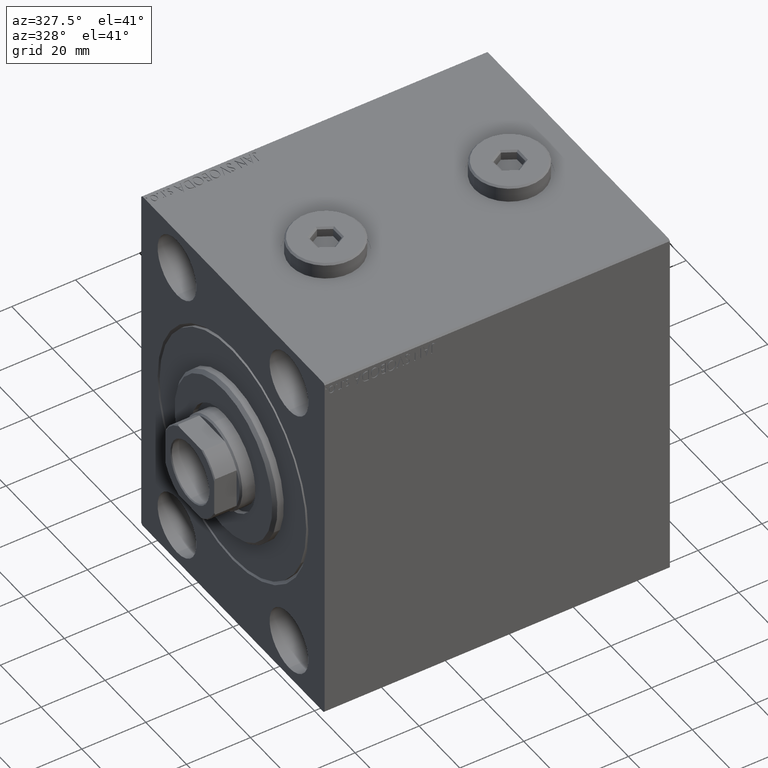
[diagram: clean part render]
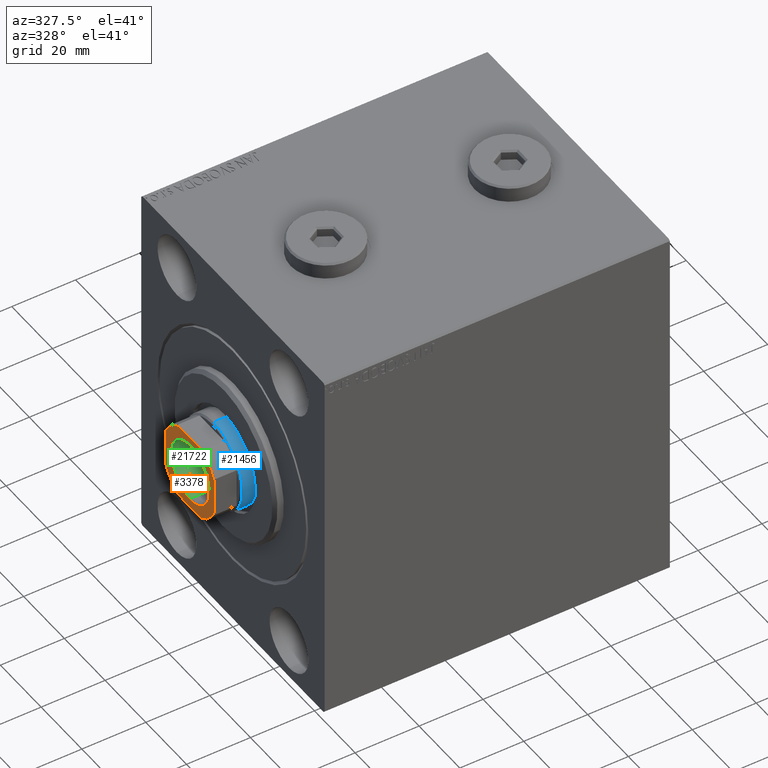
[diagram: same view with three faces highlighted in distinct colors, each labeled with its STEP entity id]
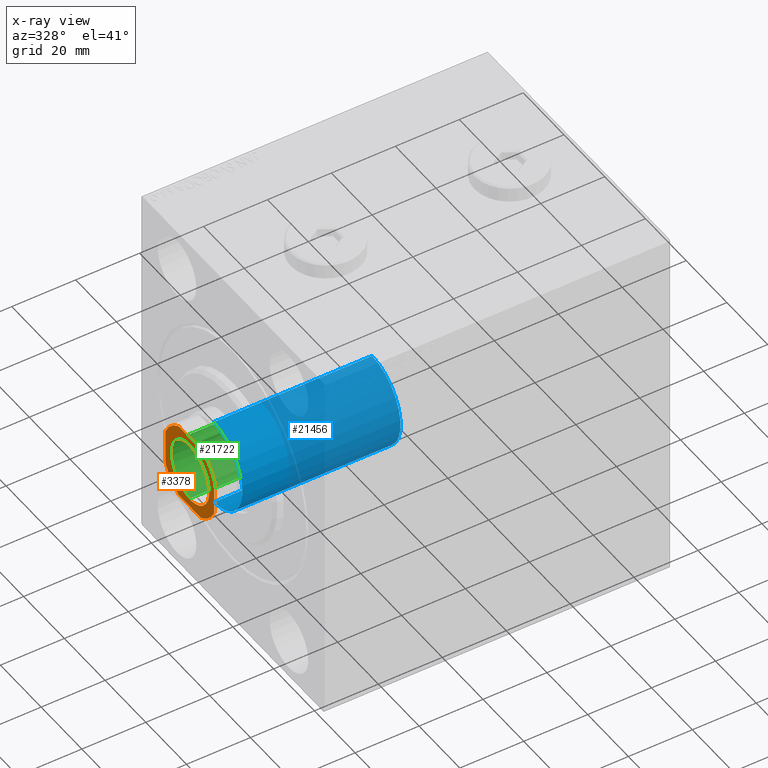
[diagram: x-ray of the same camera — body ghosted, the three highlighted faces saturated]
A machine part, auxiliary view with three faces highlighted in distinct colors.
The next image is the same camera in x-ray (body ghosted, the three faces saturated) — at least one of them is partly hidden behind the body in this view.
Their STEP definitions:

[orange] entity #3378 — the highlighted planar face has unit normal (-1, 0, 0).
#87 = DIRECTION ( 'NONE',  ( -0.000000000000000000, 0.000000000000000000, 1.000000000000000000 ) ) ;
#712 = FACE_OUTER_BOUND ( 'NONE', #27347, .T. ) ;
#1293 = CIRCLE ( 'NONE', #7172, 13.20000000000002238 ) ;
#1294 = CARTESIAN_POINT ( 'NONE',  ( -5.499090833947052559, -12.00000000000000355, 104.0000000000000142 ) ) ;
#1603 = FACE_BOUND ( 'NONE', #14694, .T. ) ;
#2509 = LINE ( 'NONE', #16704, #22084 ) ;
#3015 = EDGE_CURVE ( 'NONE', #38182, #31518, #40362, .T. ) ;
#3090 = ORIENTED_EDGE ( 'NONE', *, *, #33458, .T. ) ;
#3377 = AXIS2_PLACEMENT_3D ( 'NONE', #32456, #38901, #31789 ) ;
#3378 = ADVANCED_FACE ( 'NONE', ( #1603, #712 ), #15584, .T. ) ;
#3632 = EDGE_CURVE ( 'NONE', #23059, #43481, #22155, .T. ) ;
#4221 = CARTESIAN_POINT ( 'NONE',  ( 0.000000000000000000, 0.000000000000000000, 104.0000000000000142 ) ) ;
#6257 = CARTESIAN_POINT ( 'NONE',  ( 0.000000000000000000, 0.000000000000000000, 104.0000000000000142 ) ) ;
#7172 = AXIS2_PLACEMENT_3D ( 'NONE', #9571, #8887, #16669 ) ;
#7462 = VERTEX_POINT ( 'NONE', #38203 ) ;
#7797 = ORIENTED_EDGE ( 'NONE', *, *, #13954, .T. ) ;
#8256 = CARTESIAN_POINT ( 'NONE',  ( -9.550000000000002487, 1.169537693185722558E-15, 104.0000000000000142 ) ) ;
#8764 = AXIS2_PLACEMENT_3D ( 'NONE', #6257, #20652, #37875 ) ;
#8887 = DIRECTION ( 'NONE',  ( -0.000000000000000000, 0.000000000000000000, 1.000000000000000000 ) ) ;
#9571 = CARTESIAN_POINT ( 'NONE',  ( 0.000000000000000000, 0.000000000000000000, 104.0000000000000142 ) ) ;
#9795 = ORIENTED_EDGE ( 'NONE', *, *, #21986, .T. ) ;
#10510 = AXIS2_PLACEMENT_3D ( 'NONE', #25607, #35953, #15081 ) ;
#11420 = ORIENTED_EDGE ( 'NONE', *, *, #28696, .T. ) ;
#13308 = AXIS2_PLACEMENT_3D ( 'NONE', #28664, #18570, #32552 ) ;
#13954 = EDGE_CURVE ( 'NONE', #43481, #23059, #20186, .T. ) ;
#14024 = VECTOR ( 'NONE', #36484, 1000.000000000000000 ) ;
#14072 = DIRECTION ( 'NONE',  ( 1.000000000000000000, 0.000000000000000000, 0.000000000000000000 ) ) ;
#14694 = EDGE_LOOP ( 'NONE', ( #28329, #7797 ) ) ;
#15081 = DIRECTION ( 'NONE',  ( 1.000000000000000000, 0.000000000000000000, 0.000000000000000000 ) ) ;
#15584 = PLANE ( 'NONE',  #13308 ) ;
#15791 = CARTESIAN_POINT ( 'NONE',  ( -11.99999999999999822, -12.00000000000000355, 104.0000000000000142 ) ) ;
#15985 = ORIENTED_EDGE ( 'NONE', *, *, #32796, .T. ) ;
#16669 = DIRECTION ( 'NONE',  ( 1.000000000000000000, 0.000000000000000000, 0.000000000000000000 ) ) ;
#16704 = CARTESIAN_POINT ( 'NONE',  ( -12.00000000000000355, 11.99999999999999645, 104.0000000000000142 ) ) ;
#18092 = ORIENTED_EDGE ( 'NONE', *, *, #32074, .T. ) ;
#18331 = VECTOR ( 'NONE', #24245, 1000.000000000000000 ) ;
#18570 = DIRECTION ( 'NONE',  ( -0.000000000000000000, 0.000000000000000000, 1.000000000000000000 ) ) ;
#18813 = CARTESIAN_POINT ( 'NONE',  ( -12.00000000000000355, 11.99999999999999645, 104.0000000000000142 ) ) ;
#18933 = VERTEX_POINT ( 'NONE', #27704 ) ;
#19286 = EDGE_CURVE ( 'NONE', #30719, #29056, #1293, .T. ) ;
#20186 = CIRCLE ( 'NONE', #3377, 9.550000000000002487 ) ;
#20652 = DIRECTION ( 'NONE',  ( -0.000000000000000000, 0.000000000000000000, 1.000000000000000000 ) ) ;
#21986 = EDGE_CURVE ( 'NONE', #37990, #38182, #30215, .T. ) ;
#22084 = VECTOR ( 'NONE', #26101, 1000.000000000000000 ) ;
#22155 = CIRCLE ( 'NONE', #10510, 9.550000000000002487 ) ;
#22194 = CARTESIAN_POINT ( 'NONE',  ( 9.550000000000002487, 0.000000000000000000, 104.0000000000000142 ) ) ;
#23059 = VERTEX_POINT ( 'NONE', #22194 ) ;
#23486 = CARTESIAN_POINT ( 'NONE',  ( 5.499090833947013479, 11.99999999999999645, 104.0000000000000142 ) ) ;
#23729 = CARTESIAN_POINT ( 'NONE',  ( 5.499090833947004597, -12.00000000000000355, 104.0000000000000142 ) ) ;
#24245 = DIRECTION ( 'NONE',  ( -2.168404344971008868E-16, 1.000000000000000000, -0.000000000000000000 ) ) ;
#25607 = CARTESIAN_POINT ( 'NONE',  ( 0.000000000000000000, 0.000000000000000000, 104.0000000000000142 ) ) ;
#26101 = DIRECTION ( 'NONE',  ( -1.000000000000000000, -0.000000000000000000, -0.000000000000000000 ) ) ;
#26234 = VERTEX_POINT ( 'NONE', #23486 ) ;
#27347 = EDGE_LOOP ( 'NONE', ( #18092, #11420, #30941, #37550, #3090, #15985, #9795, #41625 ) ) ;
#27629 = VECTOR ( 'NONE', #29761, 1000.000000000000000 ) ;
#27696 = LINE ( 'NONE', #41680, #18331 ) ;
#27704 = CARTESIAN_POINT ( 'NONE',  ( -12.00000000000000000, -5.499090833947057888, 104.0000000000000142 ) ) ;
#28329 = ORIENTED_EDGE ( 'NONE', *, *, #3632, .T. ) ;
#28664 = CARTESIAN_POINT ( 'NONE',  ( 0.000000000000000000, 0.000000000000000000, 104.0000000000000142 ) ) ;
#28696 = EDGE_CURVE ( 'NONE', #7462, #26234, #37336, .T. ) ;
#29056 = VERTEX_POINT ( 'NONE', #42545 ) ;
#29349 = CIRCLE ( 'NONE', #33019, 13.20000000000002238 ) ;
#29761 = DIRECTION ( 'NONE',  ( 1.000000000000000000, 0.000000000000000000, 0.000000000000000000 ) ) ;
#30215 = LINE ( 'NONE', #15791, #27629 ) ;
#30719 = VERTEX_POINT ( 'NONE', #44279 ) ;
#30820 = DIRECTION ( 'NONE',  ( -0.000000000000000000, 0.000000000000000000, 1.000000000000000000 ) ) ;
#30941 = ORIENTED_EDGE ( 'NONE', *, *, #34734, .T. ) ;
#31518 = VERTEX_POINT ( 'NONE', #40849 ) ;
#31789 = DIRECTION ( 'NONE',  ( 1.000000000000000000, 0.000000000000000000, 0.000000000000000000 ) ) ;
#32074 = EDGE_CURVE ( 'NONE', #31518, #7462, #27696, .T. ) ;
#32456 = CARTESIAN_POINT ( 'NONE',  ( 0.000000000000000000, 0.000000000000000000, 104.0000000000000142 ) ) ;
#32552 = DIRECTION ( 'NONE',  ( 1.000000000000000000, 0.000000000000000000, 0.000000000000000000 ) ) ;
#32796 = EDGE_CURVE ( 'NONE', #18933, #37990, #29349, .T. ) ;
#33019 = AXIS2_PLACEMENT_3D ( 'NONE', #40710, #30820, #34059 ) ;
#33458 = EDGE_CURVE ( 'NONE', #29056, #18933, #39684, .T. ) ;
#34059 = DIRECTION ( 'NONE',  ( 1.000000000000000000, 0.000000000000000000, 0.000000000000000000 ) ) ;
#34734 = EDGE_CURVE ( 'NONE', #26234, #30719, #2509, .T. ) ;
#35953 = DIRECTION ( 'NONE',  ( 0.000000000000000000, -0.000000000000000000, -1.000000000000000000 ) ) ;
#36484 = DIRECTION ( 'NONE',  ( 2.168404344971008868E-16, -1.000000000000000000, 0.000000000000000000 ) ) ;
#37336 = CIRCLE ( 'NONE', #8764, 13.19999999999999929 ) ;
#37550 = ORIENTED_EDGE ( 'NONE', *, *, #19286, .T. ) ;
#37875 = DIRECTION ( 'NONE',  ( 1.000000000000000000, 0.000000000000000000, 0.000000000000000000 ) ) ;
#37990 = VERTEX_POINT ( 'NONE', #1294 ) ;
#38162 = AXIS2_PLACEMENT_3D ( 'NONE', #4221, #87, #14072 ) ;
#38182 = VERTEX_POINT ( 'NONE', #23729 ) ;
#38203 = CARTESIAN_POINT ( 'NONE',  ( 11.99999999999999645, 5.499090833947010815, 104.0000000000000142 ) ) ;
#38901 = DIRECTION ( 'NONE',  ( 0.000000000000000000, -0.000000000000000000, -1.000000000000000000 ) ) ;
#39684 = LINE ( 'NONE', #18813, #14024 ) ;
#40362 = CIRCLE ( 'NONE', #38162, 13.20000000000000107 ) ;
#40710 = CARTESIAN_POINT ( 'NONE',  ( 0.000000000000000000, 0.000000000000000000, 104.0000000000000142 ) ) ;
#40849 = CARTESIAN_POINT ( 'NONE',  ( 12.00000000000000000, -5.499090833947013479, 104.0000000000000142 ) ) ;
#41625 = ORIENTED_EDGE ( 'NONE', *, *, #3015, .T. ) ;
#41680 = CARTESIAN_POINT ( 'NONE',  ( 11.99999999999999645, 11.99999999999999645, 104.0000000000000142 ) ) ;
#42545 = CARTESIAN_POINT ( 'NONE',  ( -12.00000000000000178, 5.499090833947057000, 104.0000000000000142 ) ) ;
#43481 = VERTEX_POINT ( 'NONE', #8256 ) ;
#44279 = CARTESIAN_POINT ( 'NONE',  ( -5.499090833947067658, 11.99999999999999645, 104.0000000000000142 ) ) ;

[blue] entity #21456 — the highlighted cylindrical surface (partial cylindrical patch) has radius 14 mm, axis along (1, -0, -0).
#478 = CARTESIAN_POINT ( 'NONE',  ( -14.00000000000000178, 0.000000000000000000, 47.00000000000000000 ) ) ;
#922 = DIRECTION ( 'NONE',  ( 0.000000000000000000, 0.000000000000000000, -1.000000000000000000 ) ) ;
#1187 = CARTESIAN_POINT ( 'NONE',  ( 0.000000000000000000, 0.000000000000000000, 97.00000000000000000 ) ) ;
#1242 = EDGE_CURVE ( 'NONE', #17563, #4649, #10328, .T. ) ;
#2767 = DIRECTION ( 'NONE',  ( -0.000000000000000000, -0.000000000000000000, -1.000000000000000000 ) ) ;
#4179 = ORIENTED_EDGE ( 'NONE', *, *, #36033, .T. ) ;
#4507 = EDGE_CURVE ( 'NONE', #17563, #20700, #31842, .T. ) ;
#4649 = VERTEX_POINT ( 'NONE', #5471 ) ;
#5471 = CARTESIAN_POINT ( 'NONE',  ( -14.00000000000000178, 0.000000000000000000, 96.50000000000000000 ) ) ;
#7418 = AXIS2_PLACEMENT_3D ( 'NONE', #26111, #922, #15126 ) ;
#8146 = CARTESIAN_POINT ( 'NONE',  ( 0.000000000000000000, 0.000000000000000000, 47.00000000000000000 ) ) ;
#8328 = EDGE_CURVE ( 'NONE', #35263, #20700, #22953, .T. ) ;
#10328 = CIRCLE ( 'NONE', #7418, 14.00000000000000178 ) ;
#11735 = FACE_OUTER_BOUND ( 'NONE', #42279, .T. ) ;
#13376 = VECTOR ( 'NONE', #2767, 1000.000000000000000 ) ;
#15126 = DIRECTION ( 'NONE',  ( 1.000000000000000000, 0.000000000000000000, 0.000000000000000000 ) ) ;
#17563 = VERTEX_POINT ( 'NONE', #34922 ) ;
#18700 = CARTESIAN_POINT ( 'NONE',  ( 14.00000000000000178, 1.714505518806294835E-15, 47.00000000000000000 ) ) ;
#19940 = LINE ( 'NONE', #24267, #13376 ) ;
#19987 = ORIENTED_EDGE ( 'NONE', *, *, #8328, .T. ) ;
#20700 = VERTEX_POINT ( 'NONE', #18700 ) ;
#21456 = ADVANCED_FACE ( 'NONE', ( #11735 ), #22033, .T. ) ;
#21595 = DIRECTION ( 'NONE',  ( -1.000000000000000000, 0.000000000000000000, 0.000000000000000000 ) ) ;
#22033 = CYLINDRICAL_SURFACE ( 'NONE', #29156, 14.00000000000000178 ) ;
#22953 = CIRCLE ( 'NONE', #32439, 14.00000000000000178 ) ;
#24267 = CARTESIAN_POINT ( 'NONE',  ( -14.00000000000000178, 0.000000000000000000, 97.00000000000000000 ) ) ;
#25312 = DIRECTION ( 'NONE',  ( 0.000000000000000000, 0.000000000000000000, 1.000000000000000000 ) ) ;
#25762 = DIRECTION ( 'NONE',  ( 1.000000000000000000, 0.000000000000000000, 0.000000000000000000 ) ) ;
#26111 = CARTESIAN_POINT ( 'NONE',  ( 0.000000000000000000, 0.000000000000000000, 96.50000000000000000 ) ) ;
#28396 = ORIENTED_EDGE ( 'NONE', *, *, #4507, .F. ) ;
#29156 = AXIS2_PLACEMENT_3D ( 'NONE', #1187, #36037, #21595 ) ;
#30470 = ORIENTED_EDGE ( 'NONE', *, *, #1242, .T. ) ;
#31842 = LINE ( 'NONE', #42168, #38218 ) ;
#32439 = AXIS2_PLACEMENT_3D ( 'NONE', #8146, #25312, #25762 ) ;
#34607 = DIRECTION ( 'NONE',  ( -0.000000000000000000, -0.000000000000000000, -1.000000000000000000 ) ) ;
#34922 = CARTESIAN_POINT ( 'NONE',  ( 14.00000000000000178, 1.714505518806294835E-15, 96.50000000000000000 ) ) ;
#35263 = VERTEX_POINT ( 'NONE', #478 ) ;
#36033 = EDGE_CURVE ( 'NONE', #4649, #35263, #19940, .T. ) ;
#36037 = DIRECTION ( 'NONE',  ( -0.000000000000000000, -0.000000000000000000, -1.000000000000000000 ) ) ;
#38218 = VECTOR ( 'NONE', #34607, 1000.000000000000000 ) ;
#42168 = CARTESIAN_POINT ( 'NONE',  ( 14.00000000000000178, 1.714505518806294835E-15, 97.00000000000000000 ) ) ;
#42279 = EDGE_LOOP ( 'NONE', ( #28396, #30470, #4179, #19987 ) ) ;

[green] entity #21722 — the highlighted cylindrical surface (edge-blend (fillet) strip) has radius 9.25 mm, axis along (-1, 0, 0).
#2567 = ORIENTED_EDGE ( 'NONE', *, *, #42799, .T. ) ;
#3014 = DIRECTION ( 'NONE',  ( 1.000000000000000000, 0.000000000000000000, 0.000000000000000000 ) ) ;
#3219 = EDGE_CURVE ( 'NONE', #27249, #19126, #13797, .T. ) ;
#3580 = ORIENTED_EDGE ( 'NONE', *, *, #13662, .F. ) ;
#4299 = CARTESIAN_POINT ( 'NONE',  ( 0.000000000000000000, 0.000000000000000000, 103.6999999999999886 ) ) ;
#6473 = VERTEX_POINT ( 'NONE', #11423 ) ;
#6633 = CIRCLE ( 'NONE', #12488, 9.249999999999994671 ) ;
#6754 = EDGE_LOOP ( 'NONE', ( #3580, #39666, #30336, #2567 ) ) ;
#8160 = VECTOR ( 'NONE', #31657, 1000.000000000000000 ) ;
#8411 = DIRECTION ( 'NONE',  ( 1.000000000000000000, 0.000000000000000000, 0.000000000000000000 ) ) ;
#9667 = FACE_OUTER_BOUND ( 'NONE', #6754, .T. ) ;
#10364 = CARTESIAN_POINT ( 'NONE',  ( 9.249999999999994671, 0.000000000000000000, 104.0000000000000142 ) ) ;
#11423 = CARTESIAN_POINT ( 'NONE',  ( -9.249999999999994671, 1.132798289211300909E-15, 103.6999999999999886 ) ) ;
#12488 = AXIS2_PLACEMENT_3D ( 'NONE', #35497, #42591, #38932 ) ;
#13662 = EDGE_CURVE ( 'NONE', #25234, #6473, #13987, .T. ) ;
#13797 = LINE ( 'NONE', #10364, #8160 ) ;
#13987 = LINE ( 'NONE', #27954, #20149 ) ;
#14850 = CARTESIAN_POINT ( 'NONE',  ( 9.249999999999994671, 0.000000000000000000, 103.6999999999999886 ) ) ;
#16647 = AXIS2_PLACEMENT_3D ( 'NONE', #37633, #20194, #3014 ) ;
#18481 = DIRECTION ( 'NONE',  ( 0.000000000000000000, 0.000000000000000000, 1.000000000000000000 ) ) ;
#19083 = CARTESIAN_POINT ( 'NONE',  ( 9.249999999999994671, 0.000000000000000000, 79.00000000000001421 ) ) ;
#19126 = VERTEX_POINT ( 'NONE', #14850 ) ;
#20149 = VECTOR ( 'NONE', #21078, 1000.000000000000000 ) ;
#20194 = DIRECTION ( 'NONE',  ( -0.000000000000000000, -0.000000000000000000, 1.000000000000000000 ) ) ;
#21078 = DIRECTION ( 'NONE',  ( -0.000000000000000000, -0.000000000000000000, 1.000000000000000000 ) ) ;
#21722 = ADVANCED_FACE ( 'NONE', ( #9667 ), #23621, .F. ) ;
#22342 = CARTESIAN_POINT ( 'NONE',  ( -9.249999999999994671, 1.132798289211300909E-15, 79.00000000000001421 ) ) ;
#23621 = CYLINDRICAL_SURFACE ( 'NONE', #16647, 9.249999999999994671 ) ;
#25234 = VERTEX_POINT ( 'NONE', #22342 ) ;
#27249 = VERTEX_POINT ( 'NONE', #19083 ) ;
#27954 = CARTESIAN_POINT ( 'NONE',  ( -9.249999999999994671, 1.132798289211300909E-15, 104.0000000000000142 ) ) ;
#30336 = ORIENTED_EDGE ( 'NONE', *, *, #3219, .T. ) ;
#31042 = CIRCLE ( 'NONE', #39102, 9.249999999999994671 ) ;
#31657 = DIRECTION ( 'NONE',  ( -0.000000000000000000, -0.000000000000000000, 1.000000000000000000 ) ) ;
#32069 = EDGE_CURVE ( 'NONE', #27249, #25234, #6633, .T. ) ;
#35497 = CARTESIAN_POINT ( 'NONE',  ( 0.000000000000000000, 0.000000000000000000, 79.00000000000001421 ) ) ;
#37633 = CARTESIAN_POINT ( 'NONE',  ( 0.000000000000000000, 0.000000000000000000, 104.0000000000000142 ) ) ;
#38932 = DIRECTION ( 'NONE',  ( 1.000000000000000000, 0.000000000000000000, 0.000000000000000000 ) ) ;
#39102 = AXIS2_PLACEMENT_3D ( 'NONE', #4299, #18481, #8411 ) ;
#39666 = ORIENTED_EDGE ( 'NONE', *, *, #32069, .F. ) ;
#42591 = DIRECTION ( 'NONE',  ( -0.000000000000000000, -0.000000000000000000, 1.000000000000000000 ) ) ;
#42799 = EDGE_CURVE ( 'NONE', #19126, #6473, #31042, .T. ) ;